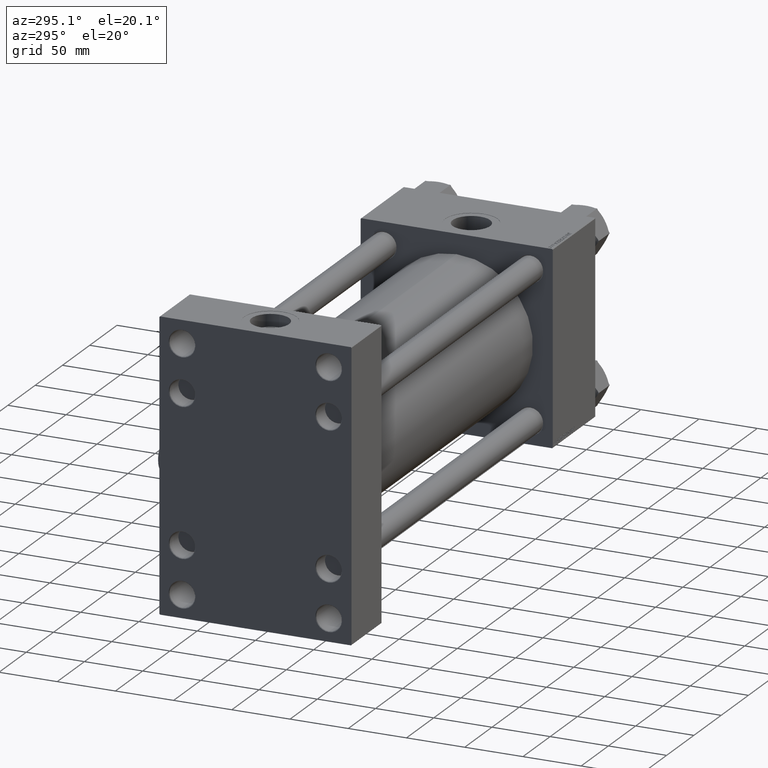
[diagram: clean part render]
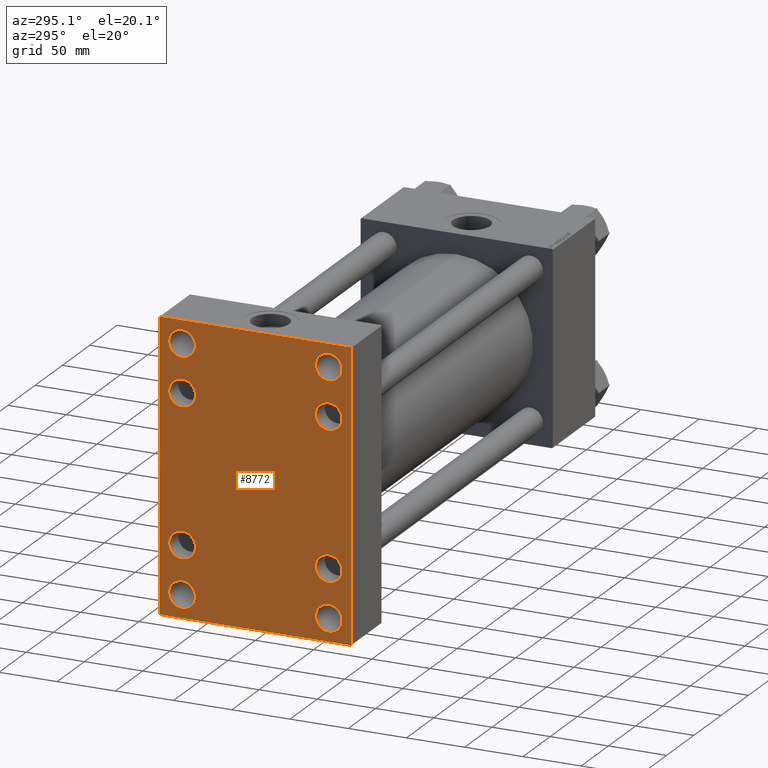
[diagram: same view with one face highlighted and labeled with its STEP entity id]
A machine part, auxiliary view. The second image highlights one B-rep face of the part: STEP entity #8772.
In plain terms, the highlighted planar face has unit normal (-1, 0, 0).
Its self-contained STEP definition (entity closure, byte-faithful):
#775 = DIRECTION ( 'NONE',  ( 1.000000000000000000, -0.000000000000000000, 0.000000000000000000 ) ) ;
#850 = ORIENTED_EDGE ( 'NONE', *, *, #43280, .T. ) ;
#1069 = DIRECTION ( 'NONE',  ( -1.000000000000000000, 0.000000000000000000, -0.000000000000000000 ) ) ;
#1169 = DIRECTION ( 'NONE',  ( 1.000000000000000000, -0.000000000000000000, 0.000000000000000000 ) ) ;
#1627 = DIRECTION ( 'NONE',  ( 1.000000000000000000, -0.000000000000000000, 0.000000000000000000 ) ) ;
#1642 = DIRECTION ( 'NONE',  ( -0.000000000000000000, 0.7071067811865279218, 0.7071067811865672237 ) ) ;
#2021 = CARTESIAN_POINT ( 'NONE',  ( 0.000000000000000000, 82.50000000000001421, 123.5000000000000284 ) ) ;
#2622 = VERTEX_POINT ( 'NONE', #40846 ) ;
#2852 = VECTOR ( 'NONE', #15124, 1000.000000000000000 ) ;
#3067 = VERTEX_POINT ( 'NONE', #43861 ) ;
#3084 = VERTEX_POINT ( 'NONE', #10594 ) ;
#3807 = DIRECTION ( 'NONE',  ( 0.000000000000000000, 0.000000000000000000, -1.000000000000000000 ) ) ;
#3816 = VERTEX_POINT ( 'NONE', #22644 ) ;
#4203 = EDGE_CURVE ( 'NONE', #11205, #22709, #41963, .T. ) ;
#4446 = VERTEX_POINT ( 'NONE', #28112 ) ;
#4757 = EDGE_CURVE ( 'NONE', #3084, #31323, #19769, .T. ) ;
#5035 = CARTESIAN_POINT ( 'NONE',  ( 0.000000000000000000, 62.99999999999998579, -103.9999999999999858 ) ) ;
#5055 = DIRECTION ( 'NONE',  ( 1.000000000000000000, -0.000000000000000000, 0.000000000000000000 ) ) ;
#5535 = CARTESIAN_POINT ( 'NONE',  ( 0.000000000000000000, -62.94999999999998153, -51.44999999999998153 ) ) ;
#5692 = LINE ( 'NONE', #12654, #37738 ) ;
#6297 = EDGE_LOOP ( 'NONE', ( #31989, #46626 ) ) ;
#6418 = DIRECTION ( 'NONE',  ( 1.000000000000000000, -0.000000000000000000, 0.000000000000000000 ) ) ;
#7124 = CARTESIAN_POINT ( 'NONE',  ( 0.000000000000000000, -63.00000000000002842, 92.49999999999994316 ) ) ;
#7147 = EDGE_CURVE ( 'NONE', #3067, #10534, #33462, .T. ) ;
#7288 = CARTESIAN_POINT ( 'NONE',  ( 0.000000000000000000, 81.99999999999998579, 123.5000000000000284 ) ) ;
#7676 = EDGE_LOOP ( 'NONE', ( #32495, #23662 ) ) ;
#8208 = ORIENTED_EDGE ( 'NONE', *, *, #32789, .T. ) ;
#8291 = VERTEX_POINT ( 'NONE', #10500 ) ;
#8772 = ADVANCED_FACE ( 'NONE', ( #49524, #41026, #29578, #20801, #12296, #32795, #13067, #28547, #45801 ), #44759, .T. ) ;
#8841 = EDGE_LOOP ( 'NONE', ( #19636, #850 ) ) ;
#9043 = DIRECTION ( 'NONE',  ( 0.000000000000000000, 0.000000000000000000, 1.000000000000000000 ) ) ;
#9073 = EDGE_CURVE ( 'NONE', #22784, #31323, #28738, .T. ) ;
#9247 = EDGE_CURVE ( 'NONE', #31965, #45367, #46260, .T. ) ;
#9660 = AXIS2_PLACEMENT_3D ( 'NONE', #41552, #1069, #24544 ) ;
#9701 = VECTOR ( 'NONE', #20201, 1000.000000000000114 ) ;
#9972 = DIRECTION ( 'NONE',  ( -0.000000000000000000, -0.7071067811865474617, -0.7071067811865474617 ) ) ;
#10230 = CARTESIAN_POINT ( 'NONE',  ( 0.000000000000000000, 102.7500000000000142, -102.7500000000000142 ) ) ;
#10324 = CARTESIAN_POINT ( 'NONE',  ( 0.000000000000000000, 82.50000000000001421, -123.0000000000000000 ) ) ;
#10500 = CARTESIAN_POINT ( 'NONE',  ( 0.000000000000000000, 82.50000000000001421, 123.0000000000000284 ) ) ;
#10534 = VERTEX_POINT ( 'NONE', #48831 ) ;
#10594 = CARTESIAN_POINT ( 'NONE',  ( 0.000000000000000000, -82.49999999999998579, 122.9999999999999716 ) ) ;
#10887 = EDGE_CURVE ( 'NONE', #44320, #22784, #51579, .T. ) ;
#11205 = VERTEX_POINT ( 'NONE', #7288 ) ;
#11451 = DIRECTION ( 'NONE',  ( 0.000000000000000000, 0.000000000000000000, 1.000000000000000000 ) ) ;
#11469 = VERTEX_POINT ( 'NONE', #39427 ) ;
#11634 = DIRECTION ( 'NONE',  ( 0.000000000000000000, 0.000000000000000000, 1.000000000000000000 ) ) ;
#12131 = AXIS2_PLACEMENT_3D ( 'NONE', #40893, #15611, #11634 ) ;
#12296 = FACE_BOUND ( 'NONE', #7676, .T. ) ;
#12417 = AXIS2_PLACEMENT_3D ( 'NONE', #30763, #50443, #29723 ) ;
#12642 = ORIENTED_EDGE ( 'NONE', *, *, #46406, .T. ) ;
#12654 = CARTESIAN_POINT ( 'NONE',  ( 0.000000000000000000, 82.50000000000001421, 123.5000000000000284 ) ) ;
#12895 = DIRECTION ( 'NONE',  ( 1.000000000000000000, -0.000000000000000000, 0.000000000000000000 ) ) ;
#13067 = FACE_BOUND ( 'NONE', #23837, .T. ) ;
#13120 = CARTESIAN_POINT ( 'NONE',  ( 0.000000000000000000, -63.00000000000002842, -103.9999999999999858 ) ) ;
#13351 = EDGE_LOOP ( 'NONE', ( #20485, #20357 ) ) ;
#14048 = CARTESIAN_POINT ( 'NONE',  ( 0.000000000000000000, -63.00000000000002842, 104.0000000000000142 ) ) ;
#14498 = AXIS2_PLACEMENT_3D ( 'NONE', #41122, #1169, #37396 ) ;
#14769 = CIRCLE ( 'NONE', #28373, 11.50000000000006573 ) ;
#14820 = LINE ( 'NONE', #22553, #16000 ) ;
#14871 = DIRECTION ( 'NONE',  ( 0.000000000000000000, 0.000000000000000000, 1.000000000000000000 ) ) ;
#15082 = VECTOR ( 'NONE', #9972, 1000.000000000000114 ) ;
#15124 = DIRECTION ( 'NONE',  ( 0.000000000000000000, -1.000000000000000000, -1.682156097916903834E-16 ) ) ;
#15432 = DIRECTION ( 'NONE',  ( 1.000000000000000000, -0.000000000000000000, 0.000000000000000000 ) ) ;
#15433 = ORIENTED_EDGE ( 'NONE', *, *, #10887, .T. ) ;
#15611 = DIRECTION ( 'NONE',  ( 1.000000000000000000, -0.000000000000000000, 0.000000000000000000 ) ) ;
#15795 = ORIENTED_EDGE ( 'NONE', *, *, #4203, .F. ) ;
#15822 = CIRCLE ( 'NONE', #12417, 11.50000000000003730 ) ;
#15964 = VERTEX_POINT ( 'NONE', #35195 ) ;
#16000 = VECTOR ( 'NONE', #38798, 1000.000000000000000 ) ;
#16308 = CIRCLE ( 'NONE', #41798, 11.50000000000006573 ) ;
#16385 = AXIS2_PLACEMENT_3D ( 'NONE', #20851, #28323, #16592 ) ;
#16473 = EDGE_CURVE ( 'NONE', #22719, #38454, #15822, .T. ) ;
#16592 = DIRECTION ( 'NONE',  ( 0.000000000000000000, 0.000000000000000000, 1.000000000000000000 ) ) ;
#17017 = DIRECTION ( 'NONE',  ( 0.000000000000000000, 0.000000000000000000, 1.000000000000000000 ) ) ;
#17145 = AXIS2_PLACEMENT_3D ( 'NONE', #34634, #6418, #21868 ) ;
#17342 = CARTESIAN_POINT ( 'NONE',  ( 0.000000000000000000, -82.49999999999998579, -122.9999999999999432 ) ) ;
#18185 = CARTESIAN_POINT ( 'NONE',  ( 0.000000000000000000, -63.00000000000002842, 115.5000000000000711 ) ) ;
#18611 = DIRECTION ( 'NONE',  ( 1.000000000000000000, -0.000000000000000000, 0.000000000000000000 ) ) ;
#18656 = ORIENTED_EDGE ( 'NONE', *, *, #43711, .T. ) ;
#18713 = DIRECTION ( 'NONE',  ( 0.000000000000000000, 0.000000000000000000, 1.000000000000000000 ) ) ;
#18903 = DIRECTION ( 'NONE',  ( 0.000000000000000000, 0.000000000000000000, 1.000000000000000000 ) ) ;
#18949 = AXIS2_PLACEMENT_3D ( 'NONE', #27963, #15432, #11451 ) ;
#19118 = ORIENTED_EDGE ( 'NONE', *, *, #42175, .T. ) ;
#19636 = ORIENTED_EDGE ( 'NONE', *, *, #16473, .T. ) ;
#19643 = VECTOR ( 'NONE', #1642, 1000.000000000000000 ) ;
#19659 = CARTESIAN_POINT ( 'NONE',  ( 0.000000000000000000, 82.00000000000004263, -123.4999999999999716 ) ) ;
#19769 = LINE ( 'NONE', #52237, #31920 ) ;
#20130 = EDGE_CURVE ( 'NONE', #41565, #4446, #39722, .T. ) ;
#20201 = DIRECTION ( 'NONE',  ( 0.000000000000000000, -0.7071067811865474617, 0.7071067811865474617 ) ) ;
#20357 = ORIENTED_EDGE ( 'NONE', *, *, #43805, .T. ) ;
#20485 = ORIENTED_EDGE ( 'NONE', *, *, #46513, .T. ) ;
#20801 = FACE_BOUND ( 'NONE', #50818, .T. ) ;
#20851 = CARTESIAN_POINT ( 'NONE',  ( 0.000000000000000000, 62.95000000000000284, -62.95000000000000284 ) ) ;
#21868 = DIRECTION ( 'NONE',  ( 0.000000000000000000, 0.000000000000000000, 1.000000000000000000 ) ) ;
#22553 = CARTESIAN_POINT ( 'NONE',  ( 0.000000000000000000, 102.7499999999977121, 102.7500000000034390 ) ) ;
#22601 = DIRECTION ( 'NONE',  ( 1.000000000000000000, -0.000000000000000000, 0.000000000000000000 ) ) ;
#22644 = CARTESIAN_POINT ( 'NONE',  ( 0.000000000000000000, 62.95000000000000284, 51.45000000000002416 ) ) ;
#22702 = ORIENTED_EDGE ( 'NONE', *, *, #9073, .T. ) ;
#22709 = VERTEX_POINT ( 'NONE', #50240 ) ;
#22719 = VERTEX_POINT ( 'NONE', #5535 ) ;
#22784 = VERTEX_POINT ( 'NONE', #38802 ) ;
#22944 = AXIS2_PLACEMENT_3D ( 'NONE', #5035, #49235, #9043 ) ;
#23662 = ORIENTED_EDGE ( 'NONE', *, *, #7147, .T. ) ;
#23781 = CARTESIAN_POINT ( 'NONE',  ( 0.000000000000000000, 62.99999999999998579, 115.5000000000000711 ) ) ;
#23837 = EDGE_LOOP ( 'NONE', ( #32021, #18656 ) ) ;
#24193 = EDGE_CURVE ( 'NONE', #50561, #44320, #26737, .T. ) ;
#24240 = ORIENTED_EDGE ( 'NONE', *, *, #30968, .T. ) ;
#24544 = DIRECTION ( 'NONE',  ( -0.000000000000000000, 0.000000000000000000, 1.000000000000000000 ) ) ;
#25343 = ORIENTED_EDGE ( 'NONE', *, *, #28881, .T. ) ;
#25386 = LINE ( 'NONE', #41600, #19643 ) ;
#25585 = CIRCLE ( 'NONE', #14498, 11.50000000000006573 ) ;
#25730 = EDGE_CURVE ( 'NONE', #11205, #8291, #14820, .T. ) ;
#26006 = DIRECTION ( 'NONE',  ( 0.000000000000000000, -1.000000000000000000, -1.682156097916903834E-16 ) ) ;
#26043 = DIRECTION ( 'NONE',  ( 1.000000000000000000, -0.000000000000000000, 0.000000000000000000 ) ) ;
#26115 = ORIENTED_EDGE ( 'NONE', *, *, #25730, .T. ) ;
#26363 = AXIS2_PLACEMENT_3D ( 'NONE', #49608, #12895, #33388 ) ;
#26652 = CARTESIAN_POINT ( 'NONE',  ( 0.000000000000000000, -63.00000000000002842, 104.0000000000000142 ) ) ;
#26737 = LINE ( 'NONE', #10230, #15082 ) ;
#26995 = AXIS2_PLACEMENT_3D ( 'NONE', #46737, #775, #17017 ) ;
#27203 = ORIENTED_EDGE ( 'NONE', *, *, #9247, .T. ) ;
#27872 = ORIENTED_EDGE ( 'NONE', *, *, #42197, .T. ) ;
#27963 = CARTESIAN_POINT ( 'NONE',  ( 0.000000000000000000, -62.94999999999998153, 62.95000000000001705 ) ) ;
#28052 = ORIENTED_EDGE ( 'NONE', *, *, #24193, .T. ) ;
#28112 = CARTESIAN_POINT ( 'NONE',  ( 0.000000000000000000, 62.95000000000000284, -74.45000000000004547 ) ) ;
#28258 = CIRCLE ( 'NONE', #29131, 11.50000000000003730 ) ;
#28323 = DIRECTION ( 'NONE',  ( 1.000000000000000000, -0.000000000000000000, 0.000000000000000000 ) ) ;
#28373 = AXIS2_PLACEMENT_3D ( 'NONE', #30718, #34180, #18713 ) ;
#28475 = VECTOR ( 'NONE', #26006, 1000.000000000000000 ) ;
#28547 = FACE_BOUND ( 'NONE', #39576, .T. ) ;
#28738 = LINE ( 'NONE', #37495, #9701 ) ;
#28881 = EDGE_CURVE ( 'NONE', #40078, #30953, #39942, .T. ) ;
#29010 = AXIS2_PLACEMENT_3D ( 'NONE', #41535, #5055, #37543 ) ;
#29131 = AXIS2_PLACEMENT_3D ( 'NONE', #50532, #22601, #14871 ) ;
#29373 = DIRECTION ( 'NONE',  ( 1.000000000000000000, -0.000000000000000000, 0.000000000000000000 ) ) ;
#29515 = DIRECTION ( 'NONE',  ( 0.000000000000000000, 0.000000000000000000, 1.000000000000000000 ) ) ;
#29578 = FACE_BOUND ( 'NONE', #13351, .T. ) ;
#29723 = DIRECTION ( 'NONE',  ( 0.000000000000000000, 0.000000000000000000, 1.000000000000000000 ) ) ;
#30059 = ORIENTED_EDGE ( 'NONE', *, *, #39792, .T. ) ;
#30718 = CARTESIAN_POINT ( 'NONE',  ( 0.000000000000000000, -63.00000000000002842, -103.9999999999999858 ) ) ;
#30763 = CARTESIAN_POINT ( 'NONE',  ( 0.000000000000000000, -62.94999999999998153, -62.95000000000001705 ) ) ;
#30953 = VERTEX_POINT ( 'NONE', #37384 ) ;
#30968 = EDGE_CURVE ( 'NONE', #43352, #3816, #31468, .T. ) ;
#31323 = VERTEX_POINT ( 'NONE', #17342 ) ;
#31468 = CIRCLE ( 'NONE', #26363, 11.49999999999998224 ) ;
#31760 = EDGE_CURVE ( 'NONE', #2622, #32052, #25585, .T. ) ;
#31920 = VECTOR ( 'NONE', #3807, 1000.000000000000000 ) ;
#31965 = VERTEX_POINT ( 'NONE', #18185 ) ;
#31989 = ORIENTED_EDGE ( 'NONE', *, *, #45063, .T. ) ;
#32021 = ORIENTED_EDGE ( 'NONE', *, *, #20130, .T. ) ;
#32052 = VERTEX_POINT ( 'NONE', #23781 ) ;
#32495 = ORIENTED_EDGE ( 'NONE', *, *, #44493, .T. ) ;
#32533 = AXIS2_PLACEMENT_3D ( 'NONE', #13120, #29373, #37606 ) ;
#32576 = AXIS2_PLACEMENT_3D ( 'NONE', #39652, #18611, #46842 ) ;
#32789 = EDGE_CURVE ( 'NONE', #30953, #40078, #37508, .T. ) ;
#32795 = FACE_BOUND ( 'NONE', #8841, .T. ) ;
#33388 = DIRECTION ( 'NONE',  ( 0.000000000000000000, 0.000000000000000000, 1.000000000000000000 ) ) ;
#33462 = CIRCLE ( 'NONE', #18949, 11.50000000000003730 ) ;
#34180 = DIRECTION ( 'NONE',  ( 1.000000000000000000, -0.000000000000000000, 0.000000000000000000 ) ) ;
#34234 = CIRCLE ( 'NONE', #32533, 11.50000000000006573 ) ;
#34592 = CARTESIAN_POINT ( 'NONE',  ( 0.000000000000000000, 62.99999999999998579, -115.5000000000000426 ) ) ;
#34634 = CARTESIAN_POINT ( 'NONE',  ( 0.000000000000000000, 62.95000000000000284, 62.95000000000000284 ) ) ;
#35195 = CARTESIAN_POINT ( 'NONE',  ( 0.000000000000000000, -63.00000000000002842, -115.5000000000000426 ) ) ;
#35707 = EDGE_LOOP ( 'NONE', ( #27203, #19118 ) ) ;
#37384 = CARTESIAN_POINT ( 'NONE',  ( 0.000000000000000000, 62.99999999999998579, -92.49999999999991473 ) ) ;
#37396 = DIRECTION ( 'NONE',  ( 0.000000000000000000, 0.000000000000000000, 1.000000000000000000 ) ) ;
#37495 = CARTESIAN_POINT ( 'NONE',  ( 0.000000000000000000, -102.7499999999999716, -102.7499999999999716 ) ) ;
#37508 = CIRCLE ( 'NONE', #29010, 11.50000000000006573 ) ;
#37543 = DIRECTION ( 'NONE',  ( 0.000000000000000000, 0.000000000000000000, 1.000000000000000000 ) ) ;
#37606 = DIRECTION ( 'NONE',  ( 0.000000000000000000, 0.000000000000000000, 1.000000000000000000 ) ) ;
#37738 = VECTOR ( 'NONE', #49116, 1000.000000000000000 ) ;
#38454 = VERTEX_POINT ( 'NONE', #40161 ) ;
#38798 = DIRECTION ( 'NONE',  ( 0.000000000000000000, 0.7071067811865672237, -0.7071067811865279218 ) ) ;
#38802 = CARTESIAN_POINT ( 'NONE',  ( 0.000000000000000000, -81.99999999999992895, -123.5000000000000000 ) ) ;
#39427 = CARTESIAN_POINT ( 'NONE',  ( 0.000000000000000000, -63.00000000000002842, -92.49999999999991473 ) ) ;
#39576 = EDGE_LOOP ( 'NONE', ( #24240, #27872 ) ) ;
#39652 = CARTESIAN_POINT ( 'NONE',  ( 0.000000000000000000, 62.99999999999998579, 104.0000000000000142 ) ) ;
#39722 = CIRCLE ( 'NONE', #26995, 11.50000000000003730 ) ;
#39792 = EDGE_CURVE ( 'NONE', #3084, #22709, #25386, .T. ) ;
#39942 = CIRCLE ( 'NONE', #22944, 11.50000000000006573 ) ;
#40078 = VERTEX_POINT ( 'NONE', #34592 ) ;
#40161 = CARTESIAN_POINT ( 'NONE',  ( 0.000000000000000000, -62.94999999999998153, -74.45000000000005969 ) ) ;
#40202 = CIRCLE ( 'NONE', #12131, 11.50000000000003730 ) ;
#40344 = CARTESIAN_POINT ( 'NONE',  ( 0.000000000000000000, 62.95000000000000284, -51.44999999999996732 ) ) ;
#40846 = CARTESIAN_POINT ( 'NONE',  ( 0.000000000000000000, 62.99999999999998579, 92.49999999999994316 ) ) ;
#40893 = CARTESIAN_POINT ( 'NONE',  ( 0.000000000000000000, -62.94999999999998153, 62.95000000000001705 ) ) ;
#41026 = FACE_BOUND ( 'NONE', #35707, .T. ) ;
#41122 = CARTESIAN_POINT ( 'NONE',  ( 0.000000000000000000, 62.99999999999998579, 104.0000000000000142 ) ) ;
#41535 = CARTESIAN_POINT ( 'NONE',  ( 0.000000000000000000, 62.99999999999998579, -103.9999999999999858 ) ) ;
#41552 = CARTESIAN_POINT ( 'NONE',  ( 0.000000000000000000, 0.000000000000000000, 0.000000000000000000 ) ) ;
#41565 = VERTEX_POINT ( 'NONE', #40344 ) ;
#41600 = CARTESIAN_POINT ( 'NONE',  ( -0.000000000000000000, -102.7500000000022737, 102.7499999999965610 ) ) ;
#41798 = AXIS2_PLACEMENT_3D ( 'NONE', #26652, #1627, #18903 ) ;
#41854 = ORIENTED_EDGE ( 'NONE', *, *, #4757, .F. ) ;
#41963 = LINE ( 'NONE', #2021, #28475 ) ;
#42175 = EDGE_CURVE ( 'NONE', #45367, #31965, #16308, .T. ) ;
#42197 = EDGE_CURVE ( 'NONE', #3816, #43352, #49475, .T. ) ;
#43280 = EDGE_CURVE ( 'NONE', #38454, #22719, #28258, .T. ) ;
#43352 = VERTEX_POINT ( 'NONE', #51585 ) ;
#43711 = EDGE_CURVE ( 'NONE', #4446, #41565, #47845, .T. ) ;
#43805 = EDGE_CURVE ( 'NONE', #15964, #11469, #34234, .T. ) ;
#43861 = CARTESIAN_POINT ( 'NONE',  ( 0.000000000000000000, -62.94999999999998153, 51.44999999999998153 ) ) ;
#44320 = VERTEX_POINT ( 'NONE', #19659 ) ;
#44493 = EDGE_CURVE ( 'NONE', #10534, #3067, #40202, .T. ) ;
#44759 = PLANE ( 'NONE',  #9660 ) ;
#45063 = EDGE_CURVE ( 'NONE', #32052, #2622, #49583, .T. ) ;
#45367 = VERTEX_POINT ( 'NONE', #7124 ) ;
#45801 = FACE_OUTER_BOUND ( 'NONE', #52373, .T. ) ;
#46260 = CIRCLE ( 'NONE', #51319, 11.50000000000006573 ) ;
#46406 = EDGE_CURVE ( 'NONE', #8291, #50561, #5692, .T. ) ;
#46513 = EDGE_CURVE ( 'NONE', #11469, #15964, #14769, .T. ) ;
#46626 = ORIENTED_EDGE ( 'NONE', *, *, #31760, .T. ) ;
#46737 = CARTESIAN_POINT ( 'NONE',  ( 0.000000000000000000, 62.95000000000000284, -62.95000000000000284 ) ) ;
#46842 = DIRECTION ( 'NONE',  ( 0.000000000000000000, 0.000000000000000000, 1.000000000000000000 ) ) ;
#47845 = CIRCLE ( 'NONE', #16385, 11.50000000000003730 ) ;
#48831 = CARTESIAN_POINT ( 'NONE',  ( 0.000000000000000000, -62.94999999999998153, 74.45000000000005969 ) ) ;
#49116 = DIRECTION ( 'NONE',  ( 0.000000000000000000, 0.000000000000000000, -1.000000000000000000 ) ) ;
#49235 = DIRECTION ( 'NONE',  ( 1.000000000000000000, -0.000000000000000000, 0.000000000000000000 ) ) ;
#49475 = CIRCLE ( 'NONE', #17145, 11.49999999999998224 ) ;
#49524 = FACE_BOUND ( 'NONE', #6297, .T. ) ;
#49583 = CIRCLE ( 'NONE', #32576, 11.50000000000006573 ) ;
#49608 = CARTESIAN_POINT ( 'NONE',  ( 0.000000000000000000, 62.95000000000000284, 62.95000000000000284 ) ) ;
#50240 = CARTESIAN_POINT ( 'NONE',  ( 0.000000000000000000, -81.99999999999998579, 123.5000000000000000 ) ) ;
#50443 = DIRECTION ( 'NONE',  ( 1.000000000000000000, -0.000000000000000000, 0.000000000000000000 ) ) ;
#50532 = CARTESIAN_POINT ( 'NONE',  ( 0.000000000000000000, -62.94999999999998153, -62.95000000000001705 ) ) ;
#50561 = VERTEX_POINT ( 'NONE', #10324 ) ;
#50818 = EDGE_LOOP ( 'NONE', ( #8208, #25343 ) ) ;
#51310 = CARTESIAN_POINT ( 'NONE',  ( 0.000000000000000000, 82.50000000000001421, -123.4999999999999716 ) ) ;
#51319 = AXIS2_PLACEMENT_3D ( 'NONE', #14048, #26043, #29515 ) ;
#51579 = LINE ( 'NONE', #51310, #2852 ) ;
#51585 = CARTESIAN_POINT ( 'NONE',  ( 0.000000000000000000, 62.95000000000000284, 74.44999999999998863 ) ) ;
#52237 = CARTESIAN_POINT ( 'NONE',  ( 0.000000000000000000, -82.49999999999998579, 123.5000000000000000 ) ) ;
#52373 = EDGE_LOOP ( 'NONE', ( #12642, #28052, #15433, #22702, #41854, #30059, #15795, #26115 ) ) ;